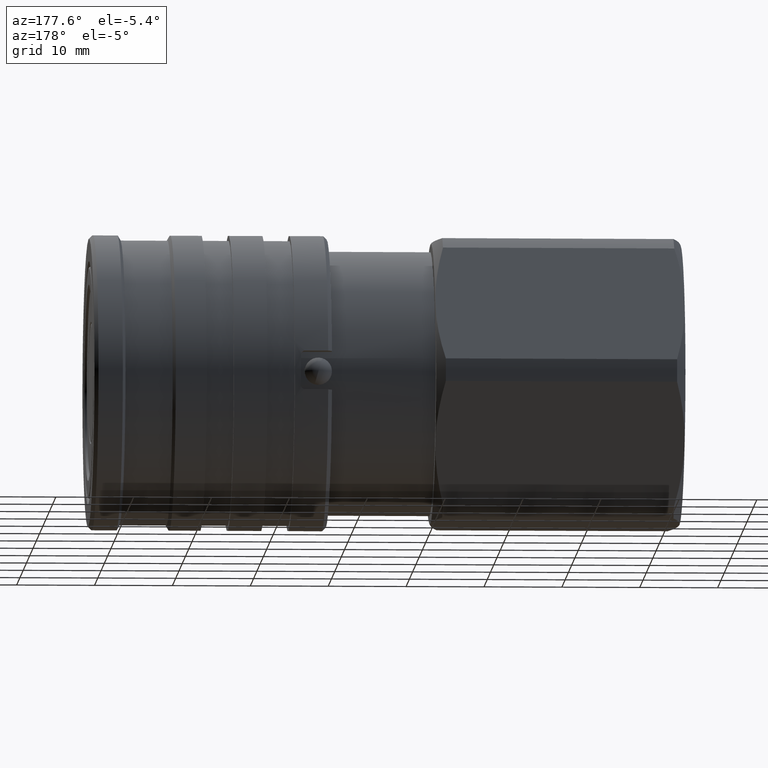
[diagram: clean part render]
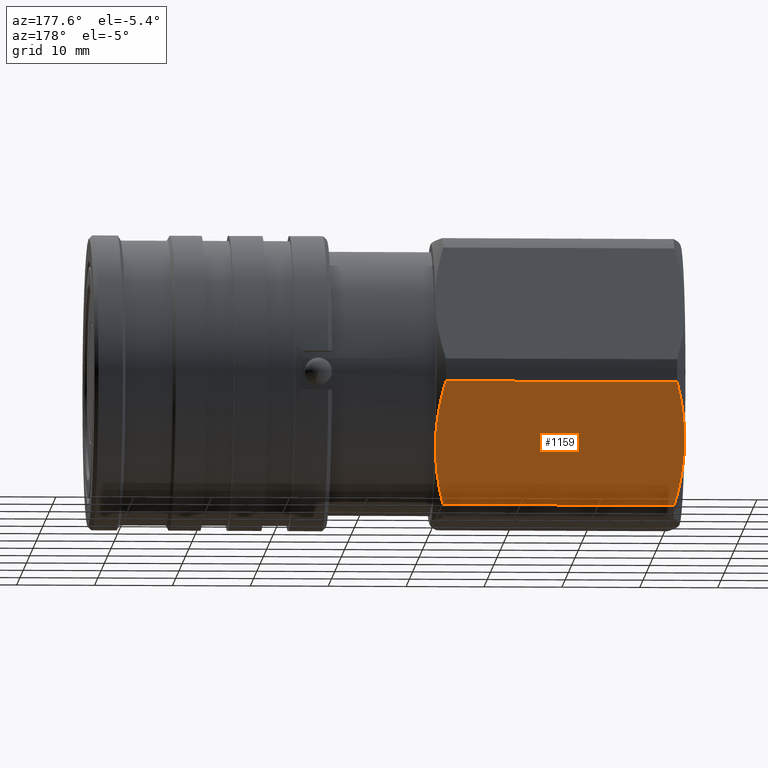
[diagram: same view with one face highlighted and labeled with its STEP entity id]
A machine part, auxiliary view. The second image highlights one B-rep face of the part: STEP entity #1159.
In plain terms, the highlighted planar face has unit normal (0, 0.866, -0.5).
Its self-contained STEP definition (entity closure, byte-faithful):
#126 = EDGE_CURVE ( 'NONE', #1746, #1912, #2441, .T. ) ;
#127 = EDGE_CURVE ( 'NONE', #1912, #1900, #2424, .T. ) ;
#243 = FACE_OUTER_BOUND ( 'NONE', #3550, .T. ) ;
#449 = DIRECTION ( 'NONE',  ( 1.000000000000000000, -0.0000000000000000000, -0.0000000000000000000 ) ) ;
#450 = CARTESIAN_POINT ( 'NONE',  ( 9.400000000000002100, 11.22955832457922300, -16.54983443527074300 ) ) ;
#693 = LINE ( 'NONE', #450, #694 ) ;
#694 = VECTOR ( 'NONE', #449, 1000.000000000000000 ) ;
#888 = EDGE_CURVE ( 'NONE', #1794, #1900, #693, .T. ) ;
#972 = EDGE_CURVE ( 'NONE', #1746, #1702, #2217, .T. ) ;
#1049 = AXIS2_PLACEMENT_3D ( 'NONE', #2835, #2836, #2837 ) ;
#1159 = ADVANCED_FACE ( 'NONE', ( #243 ), #2834, .T. ) ;
#1374 = CARTESIAN_POINT ( 'NONE',  ( 9.294402543404464400, 17.05550752218587700, -6.458994422700873100 ) ) ;
#1376 = CARTESIAN_POINT ( 'NONE',  ( 8.604841168193665600, 11.94389526068451900, -15.31256656821329700 ) ) ;
#1377 = CARTESIAN_POINT ( 'NONE',  ( 9.040950041784775200, 13.02382521808237600, -13.44207301338450500 ) ) ;
#1393 = CARTESIAN_POINT ( 'NONE',  ( 9.400000000000002100, 15.58845726811989400, -8.999999999999992900 ) ) ;
#1416 = CARTESIAN_POINT ( 'NONE',  ( 8.897343043493410900, 18.50786069862301600, -3.943444930577697500 ) ) ;
#1435 = CARTESIAN_POINT ( 'NONE',  ( 8.606667460683770100, 19.22939080031036200, -2.693718135264888700 ) ) ;
#1438 = CARTESIAN_POINT ( 'NONE',  ( 9.374143995972829700, 14.85584260875828000, -10.26892581238407200 ) ) ;
#1444 = CARTESIAN_POINT ( 'NONE',  ( 8.245299461620765800, 11.22955832457922800, -16.54983443527075000 ) ) ;
#1554 = CARTESIAN_POINT ( 'NONE',  ( 9.400000000000002100, 15.58845726811989400, -8.999999999999992900 ) ) ;
#1555 = CARTESIAN_POINT ( 'NONE',  ( 9.400000000000005700, 15.22299330903441100, -9.633002145471325100 ) ) ;
#1556 = CARTESIAN_POINT ( 'NONE',  ( 9.271117558659051700, 14.12056624092466500, -11.54246183907660000 ) ) ;
#1582 = CARTESIAN_POINT ( 'NONE',  ( 8.245299461620765800, 19.94735621166056900, -1.450165564729232200 ) ) ;
#1588 = CARTESIAN_POINT ( 'NONE',  ( 9.400000000000005700, 16.32464478988418600, -7.724885808406023500 ) ) ;
#1680 = VERTEX_POINT ( 'NONE', #2989 ) ;
#1702 = VERTEX_POINT ( 'NONE', #3003 ) ;
#1746 = VERTEX_POINT ( 'NONE', #3033 ) ;
#1794 = VERTEX_POINT ( 'NONE', #3062 ) ;
#1900 = VERTEX_POINT ( 'NONE', #3124 ) ;
#1912 = VERTEX_POINT ( 'NONE', #3133 ) ;
#2049 = ORIENTED_EDGE ( 'NONE', *, *, #4044, .T. ) ;
#2051 = ORIENTED_EDGE ( 'NONE', *, *, #127, .T. ) ;
#2055 = ORIENTED_EDGE ( 'NONE', *, *, #4038, .T. ) ;
#2057 = ORIENTED_EDGE ( 'NONE', *, *, #972, .F. ) ;
#2062 = ORIENTED_EDGE ( 'NONE', *, *, #888, .F. ) ;
#2067 = ORIENTED_EDGE ( 'NONE', *, *, #126, .T. ) ;
#2217 = LINE ( 'NONE', #2658, #2218 ) ;
#2218 = VECTOR ( 'NONE', #2659, 1000.000000000000000 ) ;
#2424 = B_SPLINE_CURVE_WITH_KNOTS ( 'NONE', 3,
 ( #1554, #1555, #1438, #1556, #1377, #1376, #1444 ),
 .UNSPECIFIED., .F., .F.,
 ( 4, 2, 1, 4 ),
 ( 0.008790474841633533200, 0.01097219168948348500, 0.01315390853733343700, 0.01751734223303334400 ),
 .UNSPECIFIED. ) ;
#2441 = B_SPLINE_CURVE_WITH_KNOTS ( 'NONE', 3,
 ( #1582, #1435, #1416, #1374, #1588, #1393 ),
 .UNSPECIFIED., .F., .F.,
 ( 4, 2, 4 ),
 ( 8.107476462940962600E-007, 0.004395642794639913700, 0.008790474841633533200 ),
 .UNSPECIFIED. ) ;
#2506 = B_SPLINE_CURVE_WITH_KNOTS ( 'NONE', 3,
 ( #3358, #3359, #3360, #3361, #3362, #3363 ),
 .UNSPECIFIED., .F., .F.,
 ( 4, 2, 4 ),
 ( 8.107476462893808300E-007, 0.004395642794639902400, 0.008790474841633515900 ),
 .UNSPECIFIED. ) ;
#2513 = B_SPLINE_CURVE_WITH_KNOTS ( 'NONE', 3,
 ( #3380, #3381, #3382, #3383, #3384, #3385, #3386 ),
 .UNSPECIFIED., .F., .F.,
 ( 4, 2, 1, 4 ),
 ( 0.008790474841633515900, 0.01097219168948346800, 0.01315390853733342000, 0.01751734223303332000 ),
 .UNSPECIFIED. ) ;
#2658 = CARTESIAN_POINT ( 'NONE',  ( 9.400000000000002100, 19.94735621166056200, -1.450165564729241500 ) ) ;
#2659 = DIRECTION ( 'NONE',  ( -1.000000000000000000, 0.0000000000000000000, 0.0000000000000000000 ) ) ;
#2834 = PLANE ( 'NONE',  #1049 ) ;
#2835 = CARTESIAN_POINT ( 'NONE',  ( -22.59999999999999800, 10.39230484541326400, -18.00000000000000000 ) ) ;
#2836 = DIRECTION ( 'NONE',  ( 0.0000000000000000000, 0.8660254037844388200, -0.4999999999999996700 ) ) ;
#2837 = DIRECTION ( 'NONE',  ( 0.0000000000000000000, 0.4999999999999996700, 0.8660254037844388200 ) ) ;
#2989 = CARTESIAN_POINT ( 'NONE',  ( -22.59999999999999800, 15.58845726811989400, -8.999999999999992900 ) ) ;
#3003 = CARTESIAN_POINT ( 'NONE',  ( -21.44529946162076000, 19.94735621166056200, -1.450165564729241500 ) ) ;
#3033 = CARTESIAN_POINT ( 'NONE',  ( 8.245299461620765800, 19.94735621166056900, -1.450165564729232200 ) ) ;
#3062 = CARTESIAN_POINT ( 'NONE',  ( -21.44529946162076000, 11.22955832457922300, -16.54983443527074300 ) ) ;
#3124 = CARTESIAN_POINT ( 'NONE',  ( 8.245299461620765800, 11.22955832457922800, -16.54983443527075000 ) ) ;
#3133 = CARTESIAN_POINT ( 'NONE',  ( 9.400000000000002100, 15.58845726811989400, -8.999999999999992900 ) ) ;
#3358 = CARTESIAN_POINT ( 'NONE',  ( -21.44529946162076000, 11.22955832457922300, -16.54983443527074300 ) ) ;
#3359 = CARTESIAN_POINT ( 'NONE',  ( -21.80666746068376200, 11.94752373592943200, -15.30628186473508700 ) ) ;
#3360 = CARTESIAN_POINT ( 'NONE',  ( -22.09734304349341000, 12.66905383761677200, -14.05655506942228400 ) ) ;
#3361 = CARTESIAN_POINT ( 'NONE',  ( -22.49440254340445800, 14.12140701405391300, -11.54100557729911000 ) ) ;
#3362 = CARTESIAN_POINT ( 'NONE',  ( -22.60000000000000100, 14.85226974635560600, -10.27511419159396100 ) ) ;
#3363 = CARTESIAN_POINT ( 'NONE',  ( -22.59999999999999800, 15.58845726811989400, -8.999999999999992900 ) ) ;
#3380 = CARTESIAN_POINT ( 'NONE',  ( -22.59999999999999800, 15.58845726811989400, -8.999999999999992900 ) ) ;
#3381 = CARTESIAN_POINT ( 'NONE',  ( -22.60000000000000100, 15.95392122720537900, -8.366997854528657200 ) ) ;
#3382 = CARTESIAN_POINT ( 'NONE',  ( -22.57414399597282200, 16.32107192748151200, -7.731074187615914400 ) ) ;
#3383 = CARTESIAN_POINT ( 'NONE',  ( -22.47111755865904900, 17.05634829531513200, -6.457538160923383500 ) ) ;
#3384 = CARTESIAN_POINT ( 'NONE',  ( -22.24095004178478200, 18.15308931815740600, -4.557926986615483700 ) ) ;
#3385 = CARTESIAN_POINT ( 'NONE',  ( -21.80484116819365800, 19.23301927555527500, -2.687433431786697000 ) ) ;
#3386 = CARTESIAN_POINT ( 'NONE',  ( -21.44529946162076000, 19.94735621166056200, -1.450165564729241500 ) ) ;
#3550 = EDGE_LOOP ( 'NONE', ( #2049, #2057, #2067, #2051, #2062, #2055 ) ) ;
#4038 = EDGE_CURVE ( 'NONE', #1794, #1680, #2506, .T. ) ;
#4044 = EDGE_CURVE ( 'NONE', #1680, #1702, #2513, .T. ) ;